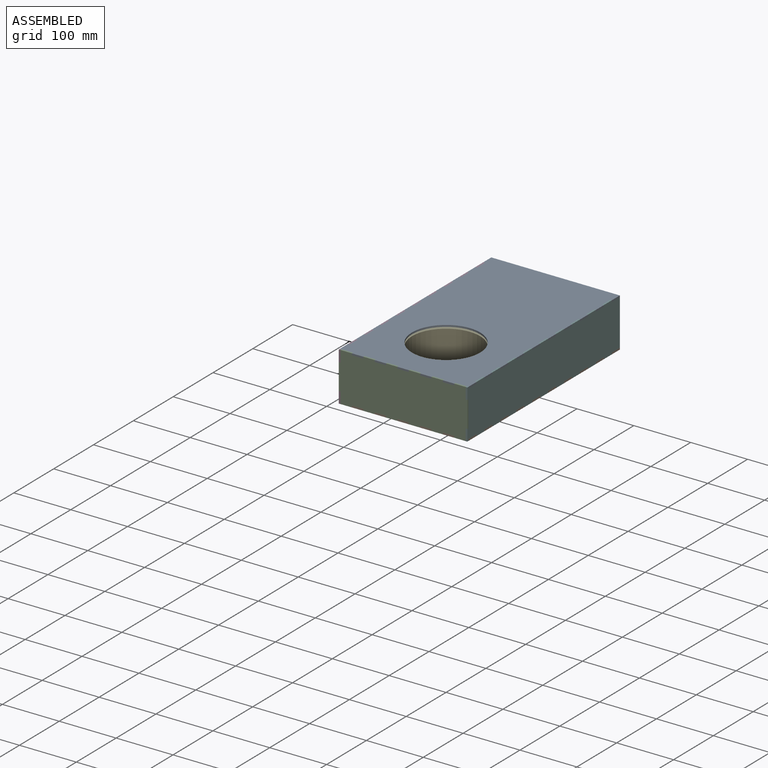
[diagram: assembled view]
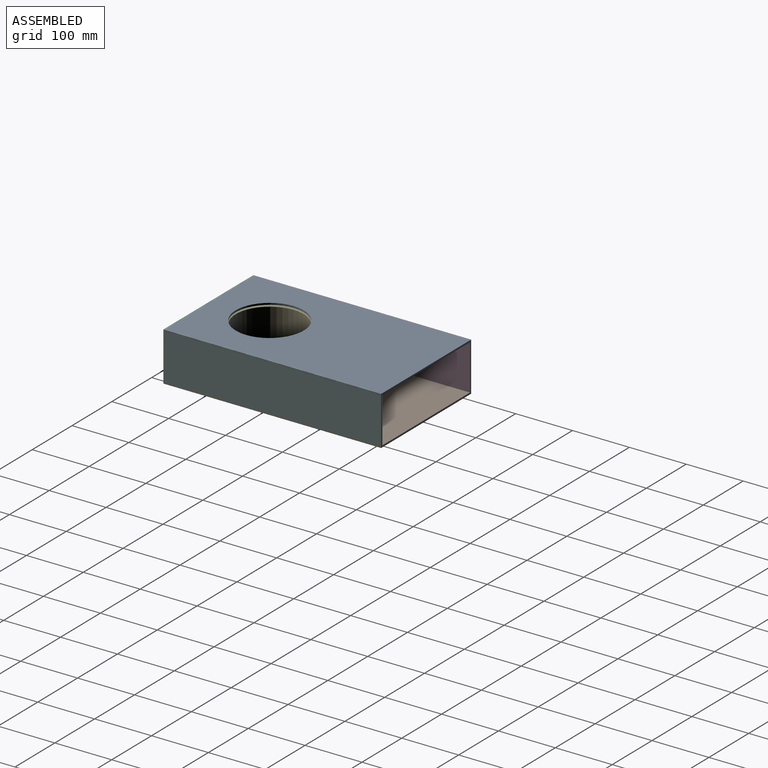
[diagram: assembled view, second angle]
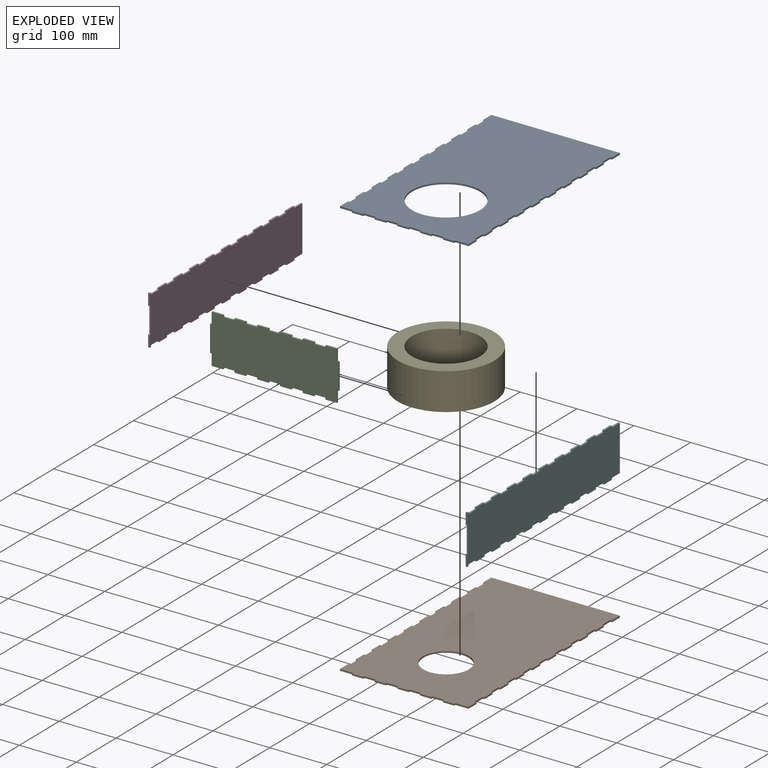
[diagram: exploded view]
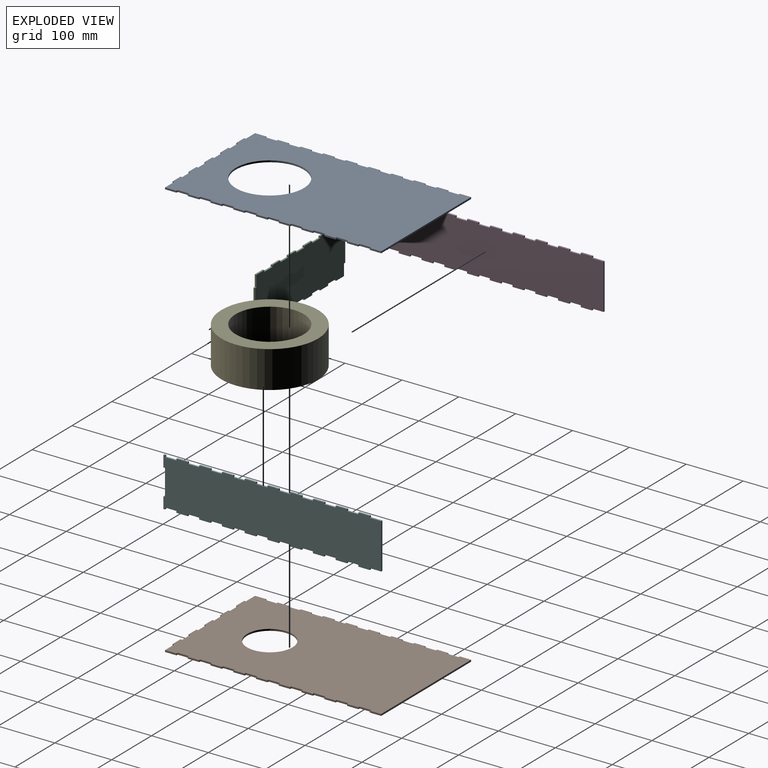
[diagram: exploded view, second angle]
ASSEMBLY  parts=6 mates=4
PART A: 99 faces, bbox 226x383x3 mm
  f0: plane 3x3mm, normal (0,1,0), area 9mm2, adj f1,f95,f97,f98
  f1: plane 20x3mm, normal (1,0,0), area 60mm2, adj f0,f2,f97,f98
  f2: plane 3x3mm, normal (0,-1,0), area 9mm2, adj f1,f3,f97,f98
  f3: plane 20x3mm, normal (1,0,0), area 60mm2, adj f2,f4,f97,f98
  f4: plane 3x3mm, normal (0,1,0), area 9mm2, adj f3,f5,f97,f98
  f5: plane 20x3mm, normal (1,0,0), area 60mm2, adj f4,f6,f97,f98
  f6: plane 3x3mm, normal (0,-1,0), area 9mm2, adj f5,f7,f97,f98
  f7: plane 20x3mm, normal (1,0,0), area 60mm2, adj f6,f8,f97,f98
  f8: plane 3x3mm, normal (0,1,0), area 9mm2, adj f7,f9,f97,f98
  f9: plane 20x3mm, normal (1,0,0), area 60mm2, adj f8,f10,f97,f98
  f10: plane 3x3mm, normal (0,-1,0), area 9mm2, adj f9,f11,f97,f98
  f11: plane 20x3mm, normal (1,0,0), area 60mm2, adj f10,f12,f97,f98
  f12: plane 3x3mm, normal (0,1,0), area 9mm2, adj f11,f13,f97,f98
  f13: plane 20x3mm, normal (1,0,0), area 60mm2, adj f12,f14,f97,f98
  f14: plane 3x3mm, normal (0,-1,0), area 9mm2, adj f13,f15,f97,f98
  f15: plane 20x3mm, normal (1,0,0), area 60mm2, adj f14,f16,f97,f98
  f16: plane 3x3mm, normal (0,1,0), area 9mm2, adj f15,f17,f97,f98
  f17: plane 20x3mm, normal (1,0,0), area 60mm2, adj f16,f18,f97,f98
  f18: plane 3x3mm, normal (0,-1,0), area 9mm2, adj f17,f19,f97,f98
  f19: plane 20x3mm, normal (1,0,0), area 60mm2, adj f18,f20,f97,f98
  f20: plane 3x3mm, normal (0,1,0), area 9mm2, adj f19,f21,f97,f98
  f21: plane 20x3mm, normal (1,0,0), area 60mm2, adj f20,f22,f97,f98
  f22: plane 3x3mm, normal (0,-1,0), area 9mm2, adj f21,f23,f97,f98
  f23: plane 20x3mm, normal (1,0,0), area 60mm2, adj f22,f24,f97,f98
  f24: plane 3x3mm, normal (0,1,0), area 9mm2, adj f23,f25,f97,f98
  f25: plane 20x3mm, normal (1,0,0), area 60mm2, adj f24,f26,f97,f98
  f26: plane 3x3mm, normal (0,-1,0), area 9mm2, adj f25,f27,f97,f98
  f27: plane 20x3mm, normal (1,0,0), area 60mm2, adj f26,f28,f97,f98
  f28: plane 3x3mm, normal (0,1,0), area 9mm2, adj f27,f29,f97,f98
  f29: plane 20x3mm, normal (1,0,0), area 60mm2, adj f28,f30,f97,f98
  f30: plane 3x3mm, normal (0,-1,0), area 9mm2, adj f29,f31,f97,f98
  f31: plane 20x3mm, normal (1,0,0), area 60mm2, adj f30,f32,f97,f98
  f32: plane 3x3mm, normal (0,1,0), area 9mm2, adj f31,f33,f97,f98
  f33: plane 20x3mm, normal (1,0,0), area 60mm2, adj f32,f34,f97,f98
  f34: plane 3x3mm, normal (0,-1,0), area 9mm2, adj f33,f35,f97,f98
  f35: plane 20x3mm, normal (1,0,0), area 60mm2, adj f34,f36,f97,f98
  f36: plane 226x3mm, normal (0,1,0), area 678mm2, adj f35,f37,f97,f98
  f37: plane 20x3mm, normal (-1,0,0), area 60mm2, adj f36,f38,f97,f98
  f38: plane 3x3mm, normal (0,-1,0), area 9mm2, adj f37,f39,f97,f98
  f39: plane 20x3mm, normal (-1,0,0), area 60mm2, adj f38,f40,f97,f98
  f40: plane 3x3mm, normal (0,1,0), area 9mm2, adj f39,f41,f97,f98
  f41: plane 20x3mm, normal (-1,0,0), area 60mm2, adj f40,f42,f97,f98
  f42: plane 3x3mm, normal (0,-1,0), area 9mm2, adj f41,f43,f97,f98
  f43: plane 20x3mm, normal (-1,0,0), area 60mm2, adj f42,f44,f97,f98
  f44: plane 3x3mm, normal (0,1,0), area 9mm2, adj f43,f45,f97,f98
  f45: plane 20x3mm, normal (-1,0,0), area 60mm2, adj f44,f46,f97,f98
  f46: plane 3x3mm, normal (0,-1,0), area 9mm2, adj f45,f47,f97,f98
  f47: plane 20x3mm, normal (-1,0,0), area 60mm2, adj f46,f48,f97,f98
  f48: plane 3x3mm, normal (0,1,0), area 9mm2, adj f47,f49,f97,f98
  f49: plane 20x3mm, normal (-1,0,0), area 60mm2, adj f48,f50,f97,f98
  f50: plane 3x3mm, normal (0,-1,0), area 9mm2, adj f49,f51,f97,f98
  f51: plane 20x3mm, normal (-1,0,0), area 60mm2, adj f50,f52,f97,f98
  f52: plane 3x3mm, normal (0,1,0), area 9mm2, adj f51,f53,f97,f98
  f53: plane 20x3mm, normal (-1,0,0), area 60mm2, adj f52,f54,f97,f98
  f54: plane 3x3mm, normal (0,-1,0), area 9mm2, adj f53,f55,f97,f98
  f55: plane 20x3mm, normal (-1,0,0), area 60mm2, adj f54,f56,f97,f98
  f56: plane 3x3mm, normal (0,1,0), area 9mm2, adj f55,f57,f97,f98
  f57: plane 20x3mm, normal (-1,0,0), area 60mm2, adj f56,f58,f97,f98
  f58: plane 3x3mm, normal (0,-1,0), area 9mm2, adj f57,f59,f97,f98
  f59: plane 20x3mm, normal (-1,0,0), area 60mm2, adj f58,f60,f97,f98
  f60: plane 3x3mm, normal (0,1,0), area 9mm2, adj f59,f61,f97,f98
  f61: plane 20x3mm, normal (-1,0,0), area 60mm2, adj f60,f62,f97,f98
  f62: plane 3x3mm, normal (0,-1,0), area 9mm2, adj f61,f63,f97,f98
  f63: plane 20x3mm, normal (-1,0,0), area 60mm2, adj f62,f64,f97,f98
  f64: plane 3x3mm, normal (0,1,0), area 9mm2, adj f63,f65,f97,f98
  f65: plane 20x3mm, normal (-1,0,0), area 60mm2, adj f64,f66,f97,f98
  f66: plane 3x3mm, normal (0,-1,0), area 9mm2, adj f65,f67,f97,f98
  f67: plane 20x3mm, normal (-1,0,0), area 60mm2, adj f66,f68,f97,f98
  f68: plane 3x3mm, normal (0,1,0), area 9mm2, adj f67,f69,f97,f98
  f69: plane 20x3mm, normal (-1,0,0), area 60mm2, adj f68,f70,f97,f98
  f70: plane 3x3mm, normal (0,-1,0), area 9mm2, adj f69,f71,f97,f98
  f71: plane 20x3mm, normal (-1,0,0), area 60mm2, adj f70,f72,f97,f98
  f72: plane 3x3mm, normal (0,1,0), area 9mm2, adj f71,f73,f97,f98
  f73: plane 20x3mm, normal (-1,0,0), area 60mm2, adj f72,f74,f97,f98
  f74: plane 23x3mm, normal (0,-1,0), area 69mm2, adj f73,f75,f97,f98
  f75: plane 3x3mm, normal (-1,0,0), area 9mm2, adj f74,f76,f97,f98
  f76: plane 20x3mm, normal (0,-1,0), area 60mm2, adj f75,f77,f97,f98
  f77: plane 3x3mm, normal (1,0,0), area 9mm2, adj f76,f78,f97,f98
  f78: plane 20x3mm, normal (0,-1,0), area 60mm2, adj f77,f79,f97,f98
  f79: plane 3x3mm, normal (-1,0,0), area 9mm2, adj f78,f80,f97,f98
  f80: plane 20x3mm, normal (0,-1,0), area 60mm2, adj f79,f81,f97,f98
  f81: plane 3x3mm, normal (1,0,0), area 9mm2, adj f80,f82,f97,f98
  f82: plane 20x3mm, normal (0,-1,0), area 60mm2, adj f81,f83,f97,f98
  f83: plane 3x3mm, normal (-1,0,0), area 9mm2, adj f82,f84,f97,f98
  f84: plane 20x3mm, normal (0,-1,0), area 60mm2, adj f83,f85,f97,f98
  f85: plane 3x3mm, normal (1,0,0), area 9mm2, adj f84,f86,f97,f98
  f86: plane 20x3mm, normal (0,-1,0), area 60mm2, adj f85,f87,f97,f98
  f87: plane 3x3mm, normal (-1,0,0), area 9mm2, adj f86,f88,f97,f98
  f88: plane 20x3mm, normal (0,-1,0), area 60mm2, adj f87,f89,f97,f98
  f89: plane 3x3mm, normal (1,0,0), area 9mm2, adj f88,f90,f97,f98
  f90: plane 20x3mm, normal (0,-1,0), area 60mm2, adj f89,f91,f97,f98
  f91: plane 3x3mm, normal (-1,0,0), area 9mm2, adj f90,f92,f97,f98
  f92: plane 20x3mm, normal (0,-1,0), area 60mm2, adj f91,f93,f97,f98
  f93: plane 3x3mm, normal (1,0,0), area 9mm2, adj f92,f94,f97,f98
  f94: plane 23x3mm, normal (0,-1,0), area 69mm2, adj f93,f95,f97,f98
  f95: plane 20x3mm, normal (1,0,0), area 60mm2, adj f0,f94,f97,f98
  f96: cylinder r=60mm len=120mm, axis (0,0,-1), area 1131mm2, adj f97,f98
  f97: plane 383x226mm, normal (0,0,1), area 73790.3mm2, adj f0,f1,f2,f3,f4,f5,f6,f7
  f98: plane 383x226mm, normal (0,0,-1), area 73790.3mm2, adj f0,f1,f2,f3,f4,f5,f6,f7
PART B: 99 faces, bbox 226x383x3 mm
  f0: plane 20x3mm, normal (1,0,0), area 60mm2, adj f1,f95,f97,f98
  f1: plane 226x3mm, normal (0,1,0), area 678mm2, adj f0,f2,f97,f98
  f2: plane 20x3mm, normal (-1,0,0), area 60mm2, adj f1,f3,f97,f98
  f3: plane 3x3mm, normal (0,-1,0), area 9mm2, adj f2,f4,f97,f98
  f4: plane 20x3mm, normal (-1,0,0), area 60mm2, adj f3,f5,f97,f98
  f5: plane 3x3mm, normal (0,1,0), area 9mm2, adj f4,f6,f97,f98
  f6: plane 20x3mm, normal (-1,0,0), area 60mm2, adj f5,f7,f97,f98
  f7: plane 3x3mm, normal (0,-1,0), area 9mm2, adj f6,f8,f97,f98
  f8: plane 20x3mm, normal (-1,0,0), area 60mm2, adj f7,f9,f97,f98
  f9: plane 3x3mm, normal (0,1,0), area 9mm2, adj f8,f10,f97,f98
  f10: plane 20x3mm, normal (-1,0,0), area 60mm2, adj f9,f11,f97,f98
  f11: plane 3x3mm, normal (0,-1,0), area 9mm2, adj f10,f12,f97,f98
  f12: plane 20x3mm, normal (-1,0,0), area 60mm2, adj f11,f13,f97,f98
  f13: plane 3x3mm, normal (0,1,0), area 9mm2, adj f12,f14,f97,f98
  f14: plane 20x3mm, normal (-1,0,0), area 60mm2, adj f13,f15,f97,f98
  f15: plane 3x3mm, normal (0,-1,0), area 9mm2, adj f14,f16,f97,f98
  f16: plane 20x3mm, normal (-1,0,0), area 60mm2, adj f15,f17,f97,f98
  f17: plane 3x3mm, normal (0,1,0), area 9mm2, adj f16,f18,f97,f98
  f18: plane 20x3mm, normal (-1,0,0), area 60mm2, adj f17,f19,f97,f98
  f19: plane 3x3mm, normal (0,-1,0), area 9mm2, adj f18,f20,f97,f98
  f20: plane 20x3mm, normal (-1,0,0), area 60mm2, adj f19,f21,f97,f98
  f21: plane 3x3mm, normal (0,1,0), area 9mm2, adj f20,f22,f97,f98
  f22: plane 20x3mm, normal (-1,0,0), area 60mm2, adj f21,f23,f97,f98
  f23: plane 3x3mm, normal (0,-1,0), area 9mm2, adj f22,f24,f97,f98
  f24: plane 20x3mm, normal (-1,0,0), area 60mm2, adj f23,f25,f97,f98
  f25: plane 3x3mm, normal (0,1,0), area 9mm2, adj f24,f26,f97,f98
  f26: plane 20x3mm, normal (-1,0,0), area 60mm2, adj f25,f27,f97,f98
  f27: plane 3x3mm, normal (0,-1,0), area 9mm2, adj f26,f28,f97,f98
  f28: plane 20x3mm, normal (-1,0,0), area 60mm2, adj f27,f29,f97,f98
  f29: plane 3x3mm, normal (0,1,0), area 9mm2, adj f28,f30,f97,f98
  f30: plane 20x3mm, normal (-1,0,0), area 60mm2, adj f29,f31,f97,f98
  f31: plane 3x3mm, normal (0,-1,0), area 9mm2, adj f30,f32,f97,f98
  f32: plane 20x3mm, normal (-1,0,0), area 60mm2, adj f31,f33,f97,f98
  f33: plane 3x3mm, normal (0,1,0), area 9mm2, adj f32,f34,f97,f98
  f34: plane 20x3mm, normal (-1,0,0), area 60mm2, adj f33,f35,f97,f98
  f35: plane 3x3mm, normal (0,-1,0), area 9mm2, adj f34,f36,f97,f98
  f36: plane 20x3mm, normal (-1,0,0), area 60mm2, adj f35,f37,f97,f98
  f37: plane 3x3mm, normal (0,1,0), area 9mm2, adj f36,f38,f97,f98
  f38: plane 20x3mm, normal (-1,0,0), area 60mm2, adj f37,f39,f97,f98
  f39: plane 23x3mm, normal (0,-1,0), area 69mm2, adj f38,f40,f97,f98
  f40: plane 3x3mm, normal (-1,0,0), area 9mm2, adj f39,f41,f97,f98
  f41: plane 20x3mm, normal (0,-1,0), area 60mm2, adj f40,f42,f97,f98
  f42: plane 3x3mm, normal (1,0,0), area 9mm2, adj f41,f43,f97,f98
  f43: plane 20x3mm, normal (0,-1,0), area 60mm2, adj f42,f44,f97,f98
  f44: plane 3x3mm, normal (-1,0,0), area 9mm2, adj f43,f45,f97,f98
  f45: plane 20x3mm, normal (0,-1,0), area 60mm2, adj f44,f46,f97,f98
  f46: plane 3x3mm, normal (1,0,0), area 9mm2, adj f45,f47,f97,f98
  f47: plane 20x3mm, normal (0,-1,0), area 60mm2, adj f46,f48,f97,f98
  f48: plane 3x3mm, normal (-1,0,0), area 9mm2, adj f47,f49,f97,f98
  f49: plane 20x3mm, normal (0,-1,0), area 60mm2, adj f48,f50,f97,f98
  f50: plane 3x3mm, normal (1,0,0), area 9mm2, adj f49,f51,f97,f98
  f51: plane 20x3mm, normal (0,-1,0), area 60mm2, adj f50,f52,f97,f98
  f52: plane 3x3mm, normal (-1,0,0), area 9mm2, adj f51,f53,f97,f98
  f53: plane 20x3mm, normal (0,-1,0), area 60mm2, adj f52,f54,f97,f98
  f54: plane 3x3mm, normal (1,0,0), area 9mm2, adj f53,f55,f97,f98
  f55: plane 20x3mm, normal (0,-1,0), area 60mm2, adj f54,f56,f97,f98
  f56: plane 3x3mm, normal (-1,0,0), area 9mm2, adj f55,f57,f97,f98
  f57: plane 20x3mm, normal (0,-1,0), area 60mm2, adj f56,f58,f97,f98
  f58: plane 3x3mm, normal (1,0,0), area 9mm2, adj f57,f59,f97,f98
  f59: plane 23x3mm, normal (0,-1,0), area 69mm2, adj f58,f60,f97,f98
  f60: plane 20x3mm, normal (1,0,0), area 60mm2, adj f59,f61,f97,f98
  f61: plane 3x3mm, normal (0,1,0), area 9mm2, adj f60,f62,f97,f98
  f62: plane 20x3mm, normal (1,0,0), area 60mm2, adj f61,f63,f97,f98
  f63: plane 3x3mm, normal (0,-1,0), area 9mm2, adj f62,f64,f97,f98
  f64: plane 20x3mm, normal (1,0,0), area 60mm2, adj f63,f65,f97,f98
  f65: plane 3x3mm, normal (0,1,0), area 9mm2, adj f64,f66,f97,f98
  f66: plane 20x3mm, normal (1,0,0), area 60mm2, adj f65,f67,f97,f98
  f67: plane 3x3mm, normal (0,-1,0), area 9mm2, adj f66,f68,f97,f98
  f68: plane 20x3mm, normal (1,0,0), area 60mm2, adj f67,f69,f97,f98
  f69: plane 3x3mm, normal (0,1,0), area 9mm2, adj f68,f70,f97,f98
  f70: plane 20x3mm, normal (1,0,0), area 60mm2, adj f69,f71,f97,f98
  f71: plane 3x3mm, normal (0,-1,0), area 9mm2, adj f70,f72,f97,f98
  f72: plane 20x3mm, normal (1,0,0), area 60mm2, adj f71,f73,f97,f98
  f73: plane 3x3mm, normal (0,1,0), area 9mm2, adj f72,f74,f97,f98
  f74: plane 20x3mm, normal (1,0,0), area 60mm2, adj f73,f75,f97,f98
  f75: plane 3x3mm, normal (0,-1,0), area 9mm2, adj f74,f76,f97,f98
  f76: plane 20x3mm, normal (1,0,0), area 60mm2, adj f75,f77,f97,f98
  f77: plane 3x3mm, normal (0,1,0), area 9mm2, adj f76,f78,f97,f98
  f78: plane 20x3mm, normal (1,0,0), area 60mm2, adj f77,f79,f97,f98
  f79: plane 3x3mm, normal (0,-1,0), area 9mm2, adj f78,f80,f97,f98
  f80: plane 20x3mm, normal (1,0,0), area 60mm2, adj f79,f81,f97,f98
  f81: plane 3x3mm, normal (0,1,0), area 9mm2, adj f80,f82,f97,f98
  f82: plane 20x3mm, normal (1,0,0), area 60mm2, adj f81,f83,f97,f98
  f83: plane 3x3mm, normal (0,-1,0), area 9mm2, adj f82,f84,f97,f98
  f84: plane 20x3mm, normal (1,0,0), area 60mm2, adj f83,f85,f97,f98
  f85: plane 3x3mm, normal (0,1,0), area 9mm2, adj f84,f86,f97,f98
  f86: plane 20x3mm, normal (1,0,0), area 60mm2, adj f85,f87,f97,f98
  f87: plane 3x3mm, normal (0,-1,0), area 9mm2, adj f86,f88,f97,f98
  f88: plane 20x3mm, normal (1,0,0), area 60mm2, adj f87,f89,f97,f98
  f89: plane 3x3mm, normal (0,1,0), area 9mm2, adj f88,f90,f97,f98
  f90: plane 20x3mm, normal (1,0,0), area 60mm2, adj f89,f91,f97,f98
  f91: plane 3x3mm, normal (0,-1,0), area 9mm2, adj f90,f92,f97,f98
  f92: plane 20x3mm, normal (1,0,0), area 60mm2, adj f91,f93,f97,f98
  f93: plane 3x3mm, normal (0,1,0), area 9mm2, adj f92,f94,f97,f98
  f94: plane 20x3mm, normal (1,0,0), area 60mm2, adj f93,f95,f97,f98
  f95: plane 3x3mm, normal (0,-1,0), area 9mm2, adj f0,f94,f97,f98
  f96: cylinder r=40mm len=80mm, axis (0,0,-1), area 754mm2, adj f97,f98
  f97: plane 383x226mm, normal (0,0,1), area 80073.5mm2, adj f0,f1,f2,f3,f4,f5,f6,f7
  f98: plane 383x226mm, normal (0,0,-1), area 80073.5mm2, adj f0,f1,f2,f3,f4,f5,f6,f7
PART C: 54 faces, bbox 226x86x3 mm
  f0: plane 20x3mm, normal (1,0,0), area 60mm2, adj f1,f51,f52,f53
  f1: plane 20x3mm, normal (0,1,0), area 60mm2, adj f0,f2,f52,f53
  f2: plane 3x3mm, normal (-1,0,0), area 9mm2, adj f1,f3,f52,f53
  f3: plane 20x3mm, normal (0,1,0), area 60mm2, adj f2,f4,f52,f53
  f4: plane 3x3mm, normal (1,0,0), area 9mm2, adj f3,f5,f52,f53
  f5: plane 20x3mm, normal (0,1,0), area 60mm2, adj f4,f6,f52,f53
  f6: plane 3x3mm, normal (-1,0,0), area 9mm2, adj f5,f7,f52,f53
  f7: plane 20x3mm, normal (0,1,0), area 60mm2, adj f6,f8,f52,f53
  f8: plane 3x3mm, normal (1,0,0), area 9mm2, adj f7,f9,f52,f53
  f9: plane 20x3mm, normal (0,1,0), area 60mm2, adj f8,f10,f52,f53
  f10: plane 3x3mm, normal (-1,0,0), area 9mm2, adj f9,f11,f52,f53
  f11: plane 20x3mm, normal (0,1,0), area 60mm2, adj f10,f12,f52,f53
  f12: plane 3x3mm, normal (1,0,0), area 9mm2, adj f11,f13,f52,f53
  f13: plane 20x3mm, normal (0,1,0), area 60mm2, adj f12,f14,f52,f53
  f14: plane 3x3mm, normal (-1,0,0), area 9mm2, adj f13,f15,f52,f53
  f15: plane 20x3mm, normal (0,1,0), area 60mm2, adj f14,f16,f52,f53
  f16: plane 3x3mm, normal (1,0,0), area 9mm2, adj f15,f17,f52,f53
  f17: plane 20x3mm, normal (0,1,0), area 60mm2, adj f16,f18,f52,f53
  f18: plane 3x3mm, normal (-1,0,0), area 9mm2, adj f17,f19,f52,f53
  f19: plane 20x3mm, normal (0,1,0), area 60mm2, adj f18,f20,f52,f53
  f20: plane 3x3mm, normal (1,0,0), area 9mm2, adj f19,f21,f52,f53
  f21: plane 20x3mm, normal (0,1,0), area 60mm2, adj f20,f22,f52,f53
  f22: plane 20x3mm, normal (-1,0,0), area 60mm2, adj f21,f23,f52,f53
  f23: plane 3x3mm, normal (0,1,0), area 9mm2, adj f22,f24,f52,f53
  f24: plane 46x3mm, normal (-1,0,0), area 138mm2, adj f23,f25,f52,f53
  f25: plane 3x3mm, normal (0,-1,0), area 9mm2, adj f24,f26,f52,f53
  f26: plane 20x3mm, normal (-1,0,0), area 60mm2, adj f25,f27,f52,f53
  f27: plane 20x3mm, normal (0,-1,0), area 60mm2, adj f26,f28,f52,f53
  f28: plane 3x3mm, normal (1,0,0), area 9mm2, adj f27,f29,f52,f53
  f29: plane 20x3mm, normal (0,-1,0), area 60mm2, adj f28,f30,f52,f53
  f30: plane 3x3mm, normal (-1,0,0), area 9mm2, adj f29,f31,f52,f53
  f31: plane 20x3mm, normal (0,-1,0), area 60mm2, adj f30,f32,f52,f53
  f32: plane 3x3mm, normal (1,0,0), area 9mm2, adj f31,f33,f52,f53
  f33: plane 20x3mm, normal (0,-1,0), area 60mm2, adj f32,f34,f52,f53
  f34: plane 3x3mm, normal (-1,0,0), area 9mm2, adj f33,f35,f52,f53
  f35: plane 20x3mm, normal (0,-1,0), area 60mm2, adj f34,f36,f52,f53
  f36: plane 3x3mm, normal (1,0,0), area 9mm2, adj f35,f37,f52,f53
  f37: plane 20x3mm, normal (0,-1,0), area 60mm2, adj f36,f38,f52,f53
  f38: plane 3x3mm, normal (-1,0,0), area 9mm2, adj f37,f39,f52,f53
  f39: plane 20x3mm, normal (0,-1,0), area 60mm2, adj f38,f40,f52,f53
  f40: plane 3x3mm, normal (1,0,0), area 9mm2, adj f39,f41,f52,f53
  f41: plane 20x3mm, normal (0,-1,0), area 60mm2, adj f40,f42,f52,f53
  f42: plane 3x3mm, normal (-1,0,0), area 9mm2, adj f41,f43,f52,f53
  f43: plane 20x3mm, normal (0,-1,0), area 60mm2, adj f42,f44,f52,f53
  f44: plane 3x3mm, normal (1,0,0), area 9mm2, adj f43,f45,f52,f53
  f45: plane 20x3mm, normal (0,-1,0), area 60mm2, adj f44,f46,f52,f53
  f46: plane 3x3mm, normal (-1,0,0), area 9mm2, adj f45,f47,f52,f53
  f47: plane 20x3mm, normal (0,-1,0), area 60mm2, adj f46,f48,f52,f53
  f48: plane 20x3mm, normal (1,0,0), area 60mm2, adj f47,f49,f52,f53
  f49: plane 3x3mm, normal (0,-1,0), area 9mm2, adj f48,f50,f52,f53
  f50: plane 46x3mm, normal (1,0,0), area 138mm2, adj f49,f51,f52,f53
  f51: plane 3x3mm, normal (0,1,0), area 9mm2, adj f0,f50,f52,f53
  f52: plane 226x86mm, normal (0,0,1), area 18596mm2, adj f0,f1,f2,f3,f4,f5,f6,f7
  f53: plane 226x86mm, normal (0,0,-1), area 18596mm2, adj f0,f1,f2,f3,f4,f5,f6,f7
PART D: 86 faces, bbox 86x383x3 mm
  f0: plane 20x3mm, normal (-1,0,0), area 60mm2, adj f1,f83,f84,f85
  f1: plane 3x3mm, normal (0,1,0), area 9mm2, adj f0,f2,f84,f85
  f2: plane 3x3mm, normal (-1,0,0), area 9mm2, adj f1,f3,f84,f85
  f3: plane 20x3mm, normal (0,-1,0), area 60mm2, adj f2,f4,f84,f85
  f4: plane 3x3mm, normal (1,0,0), area 9mm2, adj f3,f5,f84,f85
  f5: plane 46x3mm, normal (0,-1,0), area 138mm2, adj f4,f6,f84,f85
  f6: plane 3x3mm, normal (-1,0,0), area 9mm2, adj f5,f7,f84,f85
  f7: plane 20x3mm, normal (0,-1,0), area 60mm2, adj f6,f8,f84,f85
  f8: plane 3x3mm, normal (1,0,0), area 9mm2, adj f7,f9,f84,f85
  f9: plane 3x3mm, normal (0,1,0), area 9mm2, adj f8,f10,f84,f85
  f10: plane 20x3mm, normal (1,0,0), area 60mm2, adj f9,f11,f84,f85
  f11: plane 3x3mm, normal (0,-1,0), area 9mm2, adj f10,f12,f84,f85
  f12: plane 20x3mm, normal (1,0,0), area 60mm2, adj f11,f13,f84,f85
  f13: plane 3x3mm, normal (0,1,0), area 9mm2, adj f12,f14,f84,f85
  f14: plane 20x3mm, normal (1,0,0), area 60mm2, adj f13,f15,f84,f85
  f15: plane 3x3mm, normal (0,-1,0), area 9mm2, adj f14,f16,f84,f85
  f16: plane 20x3mm, normal (1,0,0), area 60mm2, adj f15,f17,f84,f85
  f17: plane 3x3mm, normal (0,1,0), area 9mm2, adj f16,f18,f84,f85
  f18: plane 20x3mm, normal (1,0,0), area 60mm2, adj f17,f19,f84,f85
  f19: plane 3x3mm, normal (0,-1,0), area 9mm2, adj f18,f20,f84,f85
  f20: plane 20x3mm, normal (1,0,0), area 60mm2, adj f19,f21,f84,f85
  f21: plane 3x3mm, normal (0,1,0), area 9mm2, adj f20,f22,f84,f85
  f22: plane 20x3mm, normal (1,0,0), area 60mm2, adj f21,f23,f84,f85
  f23: plane 3x3mm, normal (0,-1,0), area 9mm2, adj f22,f24,f84,f85
  f24: plane 20x3mm, normal (1,0,0), area 60mm2, adj f23,f25,f84,f85
  f25: plane 3x3mm, normal (0,1,0), area 9mm2, adj f24,f26,f84,f85
  f26: plane 20x3mm, normal (1,0,0), area 60mm2, adj f25,f27,f84,f85
  f27: plane 3x3mm, normal (0,-1,0), area 9mm2, adj f26,f28,f84,f85
  f28: plane 20x3mm, normal (1,0,0), area 60mm2, adj f27,f29,f84,f85
  f29: plane 3x3mm, normal (0,1,0), area 9mm2, adj f28,f30,f84,f85
  f30: plane 20x3mm, normal (1,0,0), area 60mm2, adj f29,f31,f84,f85
  f31: plane 3x3mm, normal (0,-1,0), area 9mm2, adj f30,f32,f84,f85
  f32: plane 20x3mm, normal (1,0,0), area 60mm2, adj f31,f33,f84,f85
  f33: plane 3x3mm, normal (0,1,0), area 9mm2, adj f32,f34,f84,f85
  f34: plane 20x3mm, normal (1,0,0), area 60mm2, adj f33,f35,f84,f85
  f35: plane 3x3mm, normal (0,-1,0), area 9mm2, adj f34,f36,f84,f85
  f36: plane 20x3mm, normal (1,0,0), area 60mm2, adj f35,f37,f84,f85
  f37: plane 3x3mm, normal (0,1,0), area 9mm2, adj f36,f38,f84,f85
  f38: plane 20x3mm, normal (1,0,0), area 60mm2, adj f37,f39,f84,f85
  f39: plane 3x3mm, normal (0,-1,0), area 9mm2, adj f38,f40,f84,f85
  f40: plane 20x3mm, normal (1,0,0), area 60mm2, adj f39,f41,f84,f85
  f41: plane 3x3mm, normal (0,1,0), area 9mm2, adj f40,f42,f84,f85
  f42: plane 20x3mm, normal (1,0,0), area 60mm2, adj f41,f43,f84,f85
  f43: plane 3x3mm, normal (0,-1,0), area 9mm2, adj f42,f44,f84,f85
  f44: plane 20x3mm, normal (1,0,0), area 60mm2, adj f43,f45,f84,f85
  f45: plane 3x3mm, normal (0,1,0), area 9mm2, adj f44,f46,f84,f85
  f46: plane 20x3mm, normal (1,0,0), area 60mm2, adj f45,f47,f84,f85
  f47: plane 80x3mm, normal (0,1,0), area 240mm2, adj f46,f48,f84,f85
  f48: plane 20x3mm, normal (-1,0,0), area 60mm2, adj f47,f49,f84,f85
  f49: plane 3x3mm, normal (0,1,0), area 9mm2, adj f48,f50,f84,f85
  f50: plane 20x3mm, normal (-1,0,0), area 60mm2, adj f49,f51,f84,f85
  f51: plane 3x3mm, normal (0,-1,0), area 9mm2, adj f50,f52,f84,f85
  f52: plane 20x3mm, normal (-1,0,0), area 60mm2, adj f51,f53,f84,f85
  f53: plane 3x3mm, normal (0,1,0), area 9mm2, adj f52,f54,f84,f85
  f54: plane 20x3mm, normal (-1,0,0), area 60mm2, adj f53,f55,f84,f85
  f55: plane 3x3mm, normal (0,-1,0), area 9mm2, adj f54,f56,f84,f85
  f56: plane 20x3mm, normal (-1,0,0), area 60mm2, adj f55,f57,f84,f85
  f57: plane 3x3mm, normal (0,1,0), area 9mm2, adj f56,f58,f84,f85
  f58: plane 20x3mm, normal (-1,0,0), area 60mm2, adj f57,f59,f84,f85
  f59: plane 3x3mm, normal (0,-1,0), area 9mm2, adj f58,f60,f84,f85
  f60: plane 20x3mm, normal (-1,0,0), area 60mm2, adj f59,f61,f84,f85
  f61: plane 3x3mm, normal (0,1,0), area 9mm2, adj f60,f62,f84,f85
  f62: plane 20x3mm, normal (-1,0,0), area 60mm2, adj f61,f63,f84,f85
  f63: plane 3x3mm, normal (0,-1,0), area 9mm2, adj f62,f64,f84,f85
  f64: plane 20x3mm, normal (-1,0,0), area 60mm2, adj f63,f65,f84,f85
  f65: plane 3x3mm, normal (0,1,0), area 9mm2, adj f64,f66,f84,f85
  f66: plane 20x3mm, normal (-1,0,0), area 60mm2, adj f65,f67,f84,f85
  f67: plane 3x3mm, normal (0,-1,0), area 9mm2, adj f66,f68,f84,f85
  f68: plane 20x3mm, normal (-1,0,0), area 60mm2, adj f67,f69,f84,f85
  f69: plane 3x3mm, normal (0,1,0), area 9mm2, adj f68,f70,f84,f85
  f70: plane 20x3mm, normal (-1,0,0), area 60mm2, adj f69,f71,f84,f85
  f71: plane 3x3mm, normal (0,-1,0), area 9mm2, adj f70,f72,f84,f85
  f72: plane 20x3mm, normal (-1,0,0), area 60mm2, adj f71,f73,f84,f85
  f73: plane 3x3mm, normal (0,1,0), area 9mm2, adj f72,f74,f84,f85
  f74: plane 20x3mm, normal (-1,0,0), area 60mm2, adj f73,f75,f84,f85
  f75: plane 3x3mm, normal (0,-1,0), area 9mm2, adj f74,f76,f84,f85
  f76: plane 20x3mm, normal (-1,0,0), area 60mm2, adj f75,f77,f84,f85
  f77: plane 3x3mm, normal (0,1,0), area 9mm2, adj f76,f78,f84,f85
  f78: plane 20x3mm, normal (-1,0,0), area 60mm2, adj f77,f79,f84,f85
  f79: plane 3x3mm, normal (0,-1,0), area 9mm2, adj f78,f80,f84,f85
  f80: plane 20x3mm, normal (-1,0,0), area 60mm2, adj f79,f81,f84,f85
  f81: plane 3x3mm, normal (0,1,0), area 9mm2, adj f80,f82,f84,f85
  f82: plane 20x3mm, normal (-1,0,0), area 60mm2, adj f81,f83,f84,f85
  f83: plane 3x3mm, normal (0,-1,0), area 9mm2, adj f0,f82,f84,f85
  f84: plane 383x86mm, normal (0,0,1), area 31600mm2, adj f0,f1,f2,f3,f4,f5,f6,f7
  f85: plane 383x86mm, normal (0,0,-1), area 31600mm2, adj f0,f1,f2,f3,f4,f5,f6,f7
PART E: 8 faces, bbox 170x170x80 mm
  f0: cylinder r=60mm len=120mm, axis (0,0,-1), area 22619.5mm2, adj f2,f4
  f1: cylinder r=85mm len=170mm, axis (0,0,-1), area 34714.6mm2, adj f2,f3
  f2: plane 170x170mm, normal (0,0,1), area 11388.3mm2, adj f0,f1
  f3: plane 170x170mm, normal (0,0,-1), area 17671.5mm2, adj f1,f5
  f4: plane 120x120mm, normal (0,0,1), area 11309.7mm2, adj f0
  f5: cylinder r=40mm len=80mm, axis (0,0,-1), area 2513.3mm2, adj f3,f7
  f6: plane 70x70mm, normal (0,0,-1), area 3848.5mm2, adj f7
  f7: torus R=35mm, axis (0,0,1), area 1884.3mm2, adj f5,f6
PART F: same geometry as D
PLACE A t=(-45.95,-134.23,-24.5)mm
PLACE B t=(-523.45,-134.23,-107.5)mm
PLACE C rot(axis=(-1,0,0),90deg) t=(-45.95,-242.23,-264.25)mm
PLACE D rot(axis=(0,1,0),90deg) t=(-158.95,-134.23,-221)mm
PLACE E t=(-45.95,-134.23,-92.5)mm
PLACE F rot(axis=(0,1,0),90deg) t=(64.05,-134.23,-221)mm
MATE fastened A.f98 <-> F.f0  axis (0,0,-1) through (67.05,-239.23,-24.5)mm
MATE fastened C.f26 <-> D.f84  axis (-1,0,0) through (-155.95,-239.23,-41.5)mm
MATE fastened E.f5 <-> B.f96  axis (0,0,-1) through (-45.95,-134.23,-107.5)mm
MATE fastened B.f97 <-> F.f10  axis (0,0,1) through (67.05,-239.23,-104.5)mm
